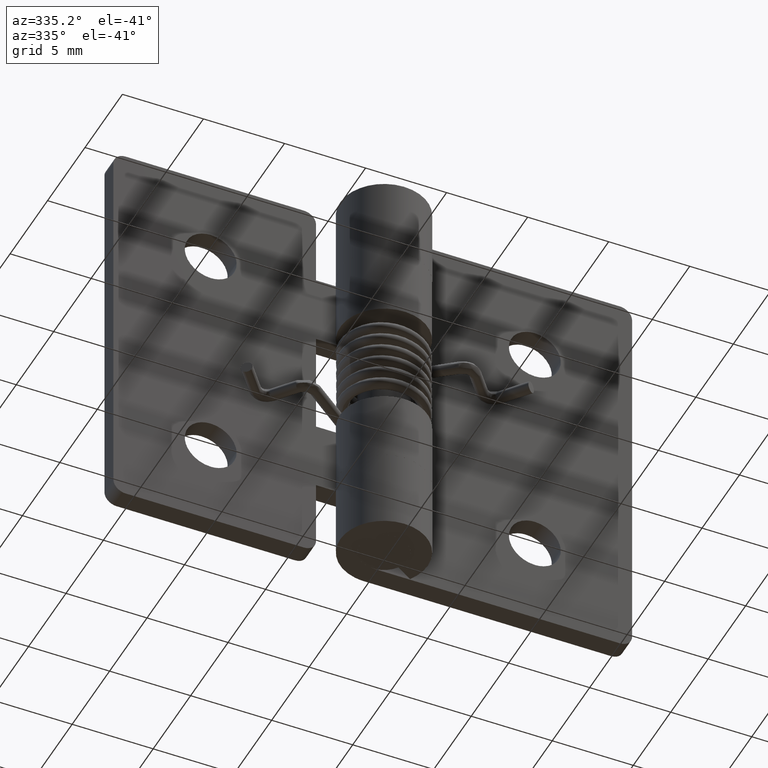
[diagram: clean part render]
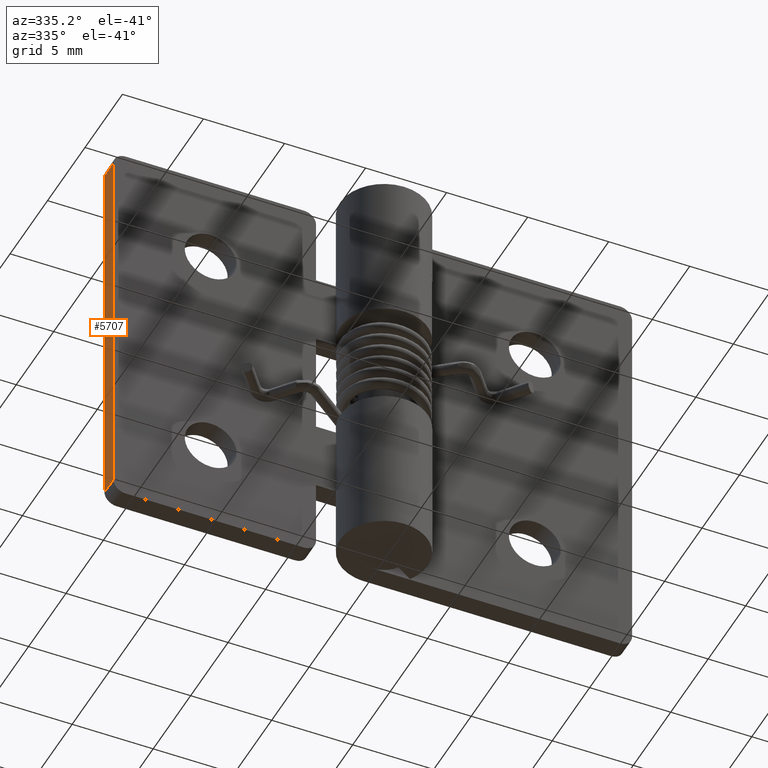
[diagram: same view with one face highlighted and labeled with its STEP entity id]
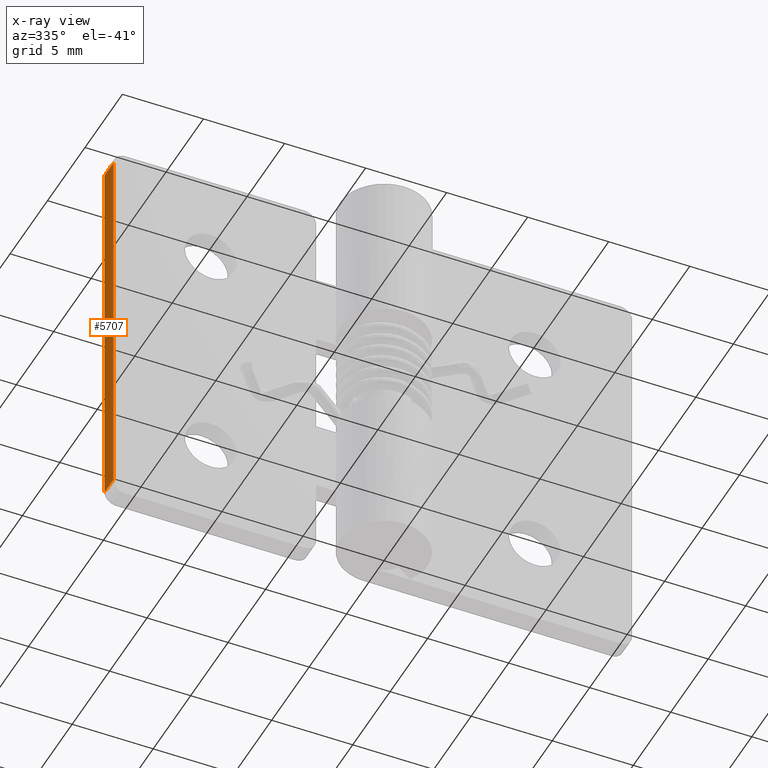
[diagram: x-ray of the same camera — body ghosted, the highlighted face saturated]
A machine part, auxiliary view. The second image highlights one B-rep face of the part: STEP entity #5707.
The next image is the same camera in x-ray: the body ghosted, the highlighted face saturated — about 0% of this face is hidden behind the body in this view.
In plain terms, the highlighted face is a freeform B-spline surface patch.
Its self-contained STEP definition (entity closure, byte-faithful):
#5018=CARTESIAN_POINT('',(-16.000008000000101,2.700005000000000,24.249984999999999));
#5019=VERTEX_POINT('',#5018);
#5033=CARTESIAN_POINT('',(-16.000008000000101,1.499999999999946,24.249984999999999));
#5034=VERTEX_POINT('',#5033);
#5035=CARTESIAN_POINT('',(-16.000008000000101,1.499999999999946,24.249984999999999));
#5036=CARTESIAN_POINT('',(-16.000008000000101,2.700005000000000,24.249984999999999));
#5037=QUASI_UNIFORM_CURVE('',1,(#5035,#5036),.UNSPECIFIED.,.F.,.U.);
#5038=EDGE_CURVE('',#5034,#5019,#5037,.T.);
#5077=CARTESIAN_POINT('',(-16.000008000000101,2.700005000000000,0.750000000000000));
#5078=VERTEX_POINT('',#5077);
#5101=CARTESIAN_POINT('',(-16.000008000000101,1.499999999999946,0.750000000000000));
#5102=VERTEX_POINT('',#5101);
#5116=CARTESIAN_POINT('',(-16.000008000000101,1.499999999999946,0.750000000000000));
#5117=CARTESIAN_POINT('',(-16.000008000000101,2.700005000000000,0.750000000000000));
#5118=QUASI_UNIFORM_CURVE('',1,(#5116,#5117),.UNSPECIFIED.,.F.,.U.);
#5119=EDGE_CURVE('',#5102,#5078,#5118,.T.);
#5688=CARTESIAN_POINT('',(-16.000008000000101,1.440059752575785,25.423808984601429));
#5689=CARTESIAN_POINT('',(-16.000008000000101,1.440059752575785,-0.423824825026376));
#5690=CARTESIAN_POINT('',(-16.000008000000101,2.759945279610803,25.423808984601429));
#5691=CARTESIAN_POINT('',(-16.000008000000101,2.759945279610803,-0.423824825026376));
#5692=B_SPLINE_SURFACE_WITH_KNOTS('',1,1,((#5688,#5690),(#5689,#5691)),.UNSPECIFIED.,.F.,.F.,.U.,(2,2),(2,2),(0.0,25.847633809627808),(0.041708334948495,0.958291687403247),.UNSPECIFIED.);
#5693=ORIENTED_EDGE('',*,*,#5038,.T.);
#5694=CARTESIAN_POINT('',(-16.000008000000101,2.700005000000000,0.750000000000000));
#5695=CARTESIAN_POINT('',(-16.000008000000101,2.700005000000000,24.249984999999999));
#5696=QUASI_UNIFORM_CURVE('',1,(#5694,#5695),.UNSPECIFIED.,.F.,.U.);
#5697=EDGE_CURVE('',#5078,#5019,#5696,.T.);
#5698=ORIENTED_EDGE('',*,*,#5697,.F.);
#5699=ORIENTED_EDGE('',*,*,#5119,.F.);
#5700=CARTESIAN_POINT('',(-16.000008000000101,1.499999999999946,0.750000000000000));
#5701=CARTESIAN_POINT('',(-16.000008000000101,1.499999999999946,24.249984999999999));
#5702=QUASI_UNIFORM_CURVE('',1,(#5700,#5701),.UNSPECIFIED.,.F.,.U.);
#5703=EDGE_CURVE('',#5102,#5034,#5702,.T.);
#5704=ORIENTED_EDGE('',*,*,#5703,.T.);
#5705=EDGE_LOOP('',(#5693,#5698,#5699,#5704));
#5706=FACE_OUTER_BOUND('',#5705,.T.);
#5707=ADVANCED_FACE('',(#5706),#5692,.F.);